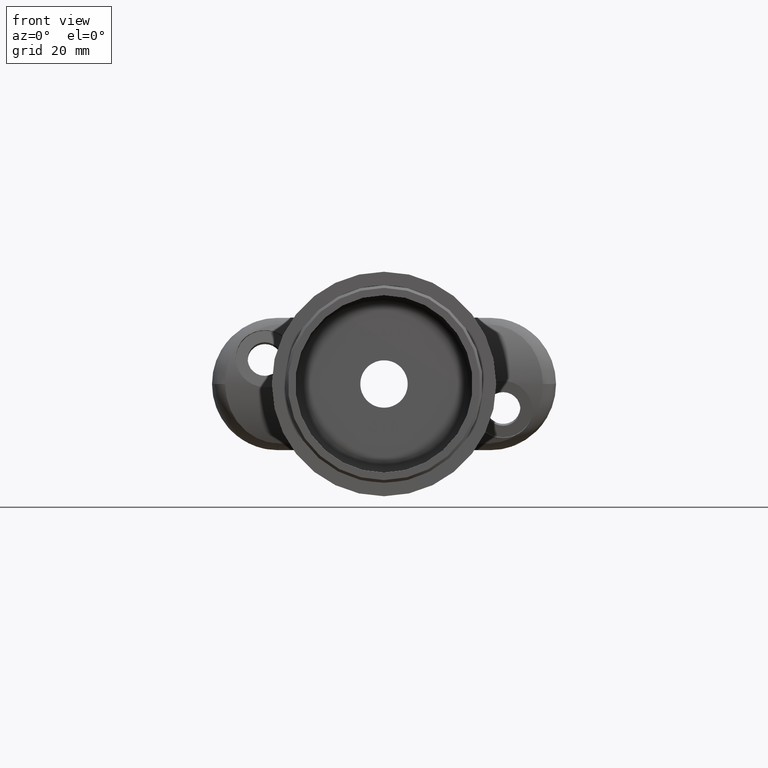
[diagram: clean part render]
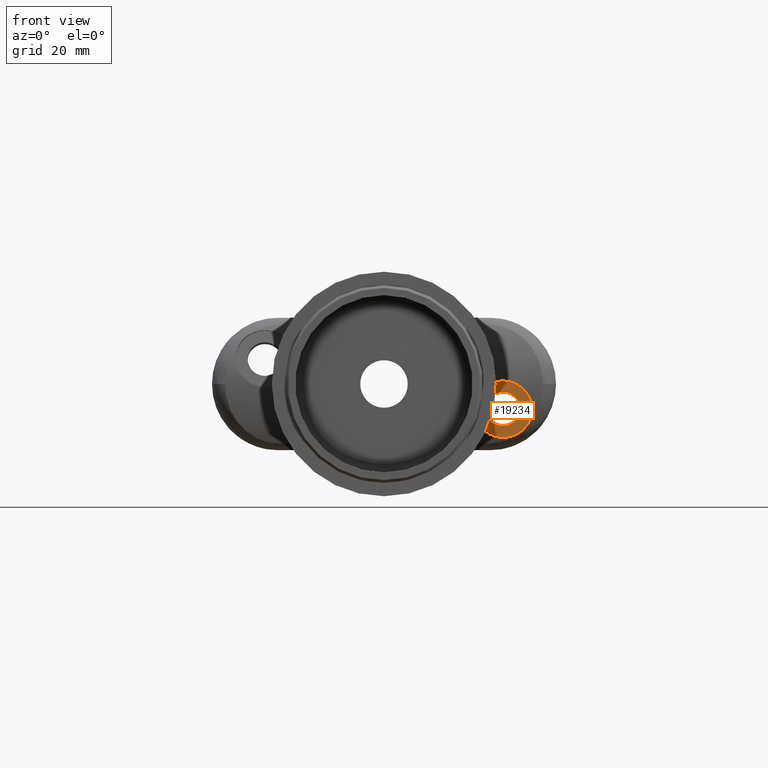
[diagram: same view with one face highlighted and labeled with its STEP entity id]
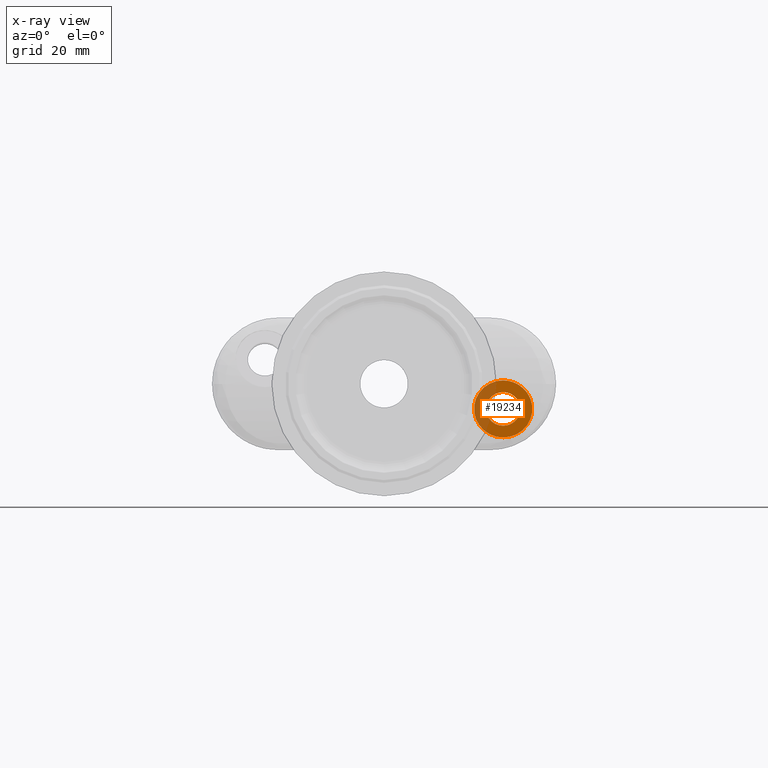
[diagram: x-ray of the same camera — body ghosted, the highlighted face saturated]
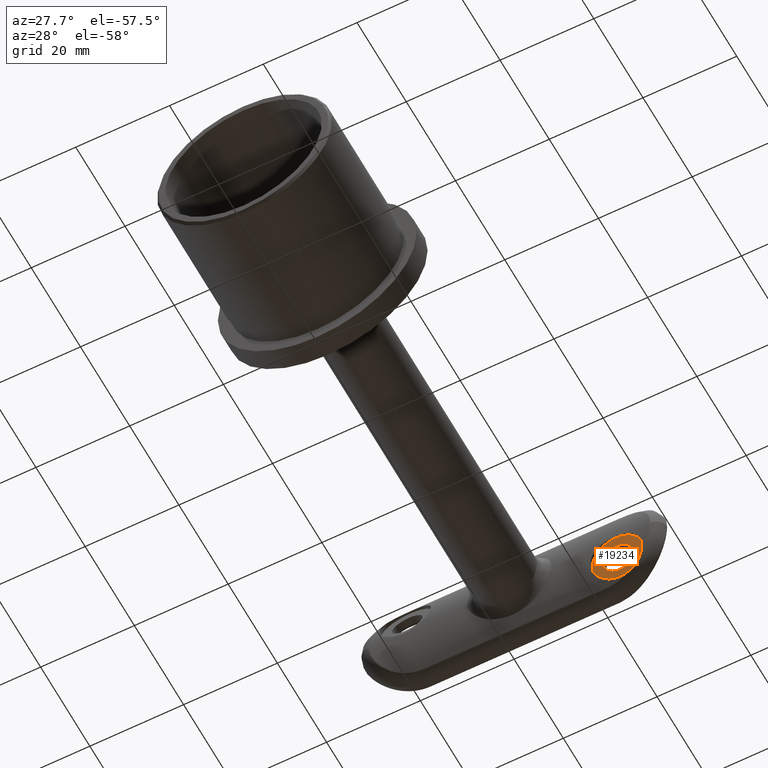
[diagram: same view with one face highlighted and labeled with its STEP entity id]
A machine part, front view. The second image highlights one B-rep face of the part: STEP entity #19234.
The next image is the same camera in x-ray: the body ghosted, the highlighted face saturated — about 33% of this face is hidden behind the body in this view.
A second angle (auxiliary view) of the same face is appended — the face is thin or edge-on in the first view.
In plain terms, the highlighted planar face has unit normal (0, -0.9781, -0.2079).
Its self-contained STEP definition (entity closure, byte-faithful):
#1052 = EDGE_CURVE ( 'NONE', #16886, #16886, #16865, .T. ) ;
#2180 = ORIENTED_EDGE ( 'NONE', *, *, #24628, .T. ) ;
#2242 = EDGE_LOOP ( 'NONE', ( #7464 ) ) ;
#5289 = VERTEX_POINT ( 'NONE', #9165 ) ;
#6934 = AXIS2_PLACEMENT_3D ( 'NONE', #14464, #8396, #24241 ) ;
#7464 = ORIENTED_EDGE ( 'NONE', *, *, #1052, .F. ) ;
#7892 = AXIS2_PLACEMENT_3D ( 'NONE', #25006, #25177, #9523 ) ;
#8147 = CARTESIAN_POINT ( 'NONE',  ( 4.719595381562989200, -1.003950536657418000, 22.50000000000000000 ) ) ;
#8396 = DIRECTION ( 'NONE',  ( 0.2079116908177528800, -0.9781476007338070200, 0.0000000000000000000 ) ) ;
#9165 = CARTESIAN_POINT ( 'NONE',  ( 10.09940718559892800, 0.1395637628402227300, 22.50000000000000000 ) ) ;
#9523 = DIRECTION ( 'NONE',  ( 0.9781476007338070200, 0.2079116908177529000, 0.0000000000000000000 ) ) ;
#13196 = CARTESIAN_POINT ( 'NONE',  ( 7.898575083947860300, -0.3282375414997197300, 22.50000000000000000 ) ) ;
#14464 = CARTESIAN_POINT ( 'NONE',  ( 4.719595381562989200, -1.003950536657418000, 22.50000000000000000 ) ) ;
#16865 = CIRCLE ( 'NONE', #7892, 3.249999999999998700 ) ;
#16886 = VERTEX_POINT ( 'NONE', #13196 ) ;
#17698 = EDGE_LOOP ( 'NONE', ( #2180 ) ) ;
#17805 = PLANE ( 'NONE',  #23200 ) ;
#19234 = ADVANCED_FACE ( 'NONE', ( #24321, #20675 ), #17805, .T. ) ;
#20675 = FACE_OUTER_BOUND ( 'NONE', #17698, .T. ) ;
#21199 = DIRECTION ( 'NONE',  ( 0.2079116908177528800, -0.9781476007338070200, 0.0000000000000000000 ) ) ;
#23200 = AXIS2_PLACEMENT_3D ( 'NONE', #8147, #21199, #23830 ) ;
#23830 = DIRECTION ( 'NONE',  ( 0.9781476007338069100, 0.2079116908177528500, 0.0000000000000000000 ) ) ;
#24241 = DIRECTION ( 'NONE',  ( 0.9781476007338070200, 0.2079116908177528500, 0.0000000000000000000 ) ) ;
#24321 = FACE_BOUND ( 'NONE', #2242, .T. ) ;
#24510 = CIRCLE ( 'NONE', #6934, 5.500000000000000000 ) ;
#24628 = EDGE_CURVE ( 'NONE', #5289, #5289, #24510, .T. ) ;
#25006 = CARTESIAN_POINT ( 'NONE',  ( 4.719595381562988300, -1.003950536657416400, 22.50000000000000000 ) ) ;
#25177 = DIRECTION ( 'NONE',  ( 0.2079116908177528800, -0.9781476007338070200, 0.0000000000000000000 ) ) ;